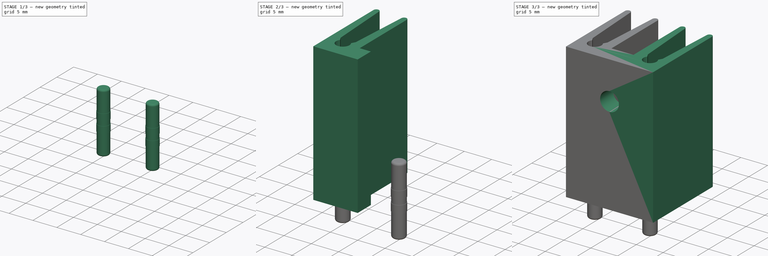
[diagram: build sequence overview — one tinted view per stage of 3, left to right]
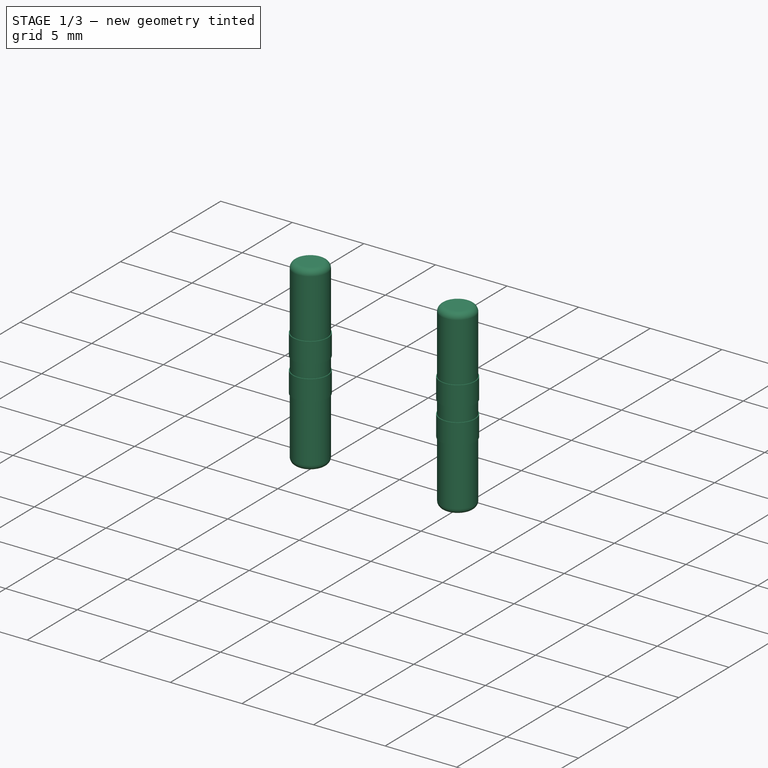
[diagram: stage 1 of 3 — iso view after this stage's code; geometry added in this stage tinted green]
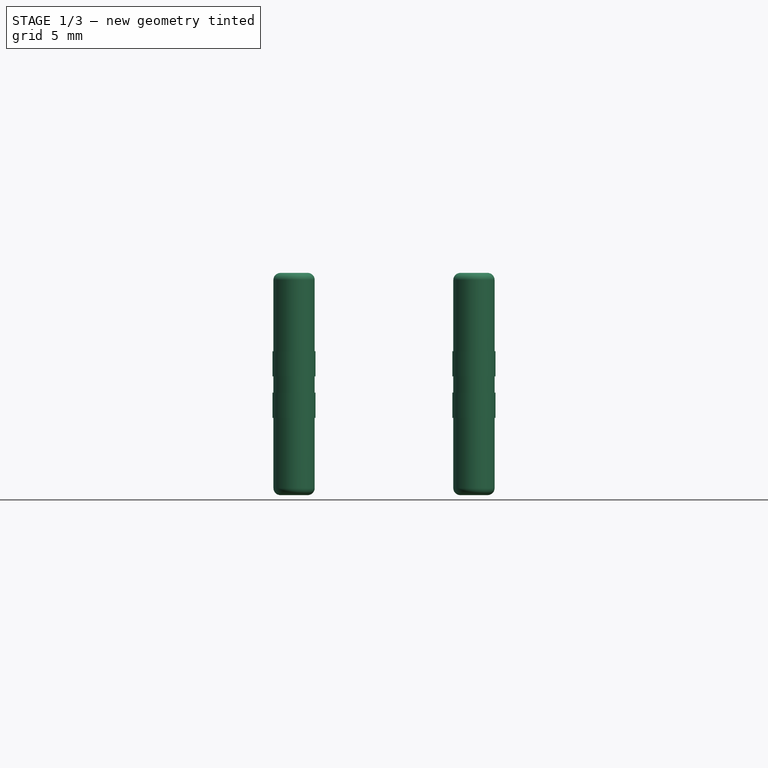
[diagram: stage 1 of 3 — front view after this stage's code; geometry added in this stage tinted green]
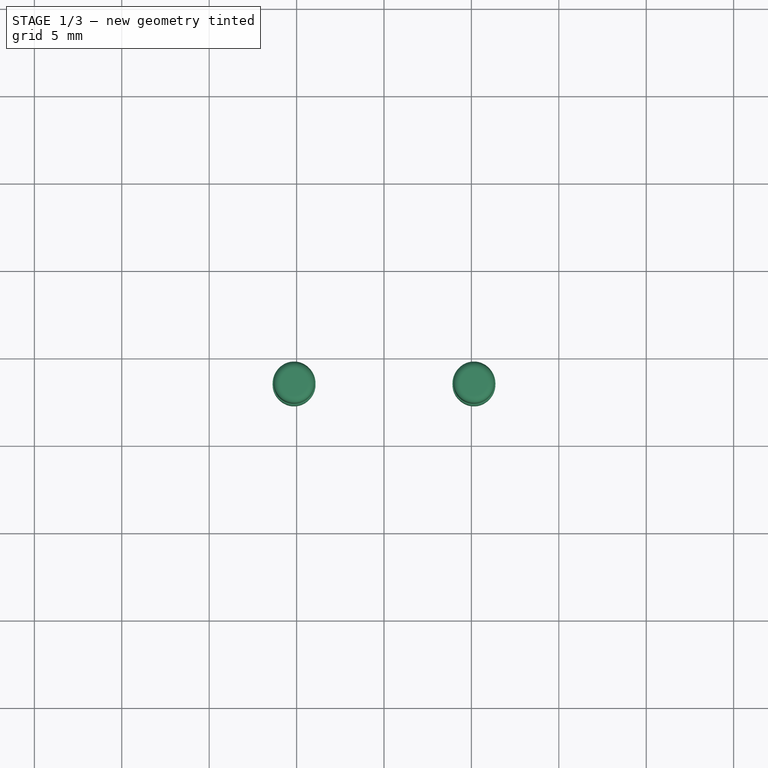
[diagram: stage 1 of 3 — top view after this stage's code; geometry added in this stage tinted green]
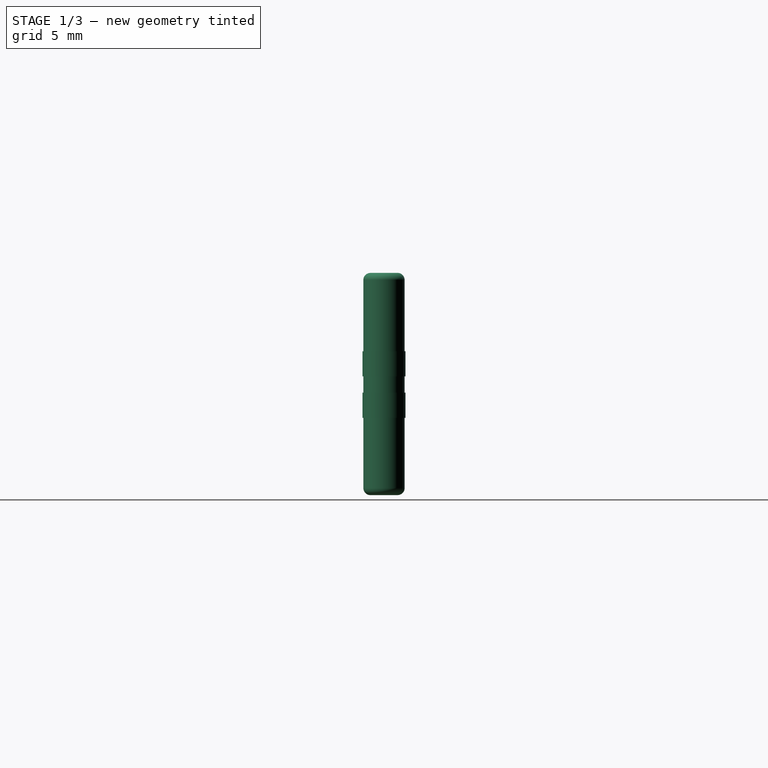
[diagram: stage 1 of 3 — right view after this stage's code; geometry added in this stage tinted green]
FCSTD DOCUMENT  (FreeCAD 1.0R38641 +468 (Git))
Label: 581002-heatsink
License: All rights reserved
LicenseURL: http://en.wikipedia.org/wiki/All_rights_reserved
objects: Sketcher::SketchObject×3, PartDesign::Body×2, PartDesign::Pad×1, PartDesign::Mirrored×1, PartDesign::Pocket×1, PartDesign::Revolution×1, Part::FeaturePython×1
note: 19 computed .brp shape members not serialized (recipe doc carries the construction recipe); baked Part::Feature solids carry a one-line shape summary decoded from their .brp

FEATURE [PartDesign::Body] Body
  AllowCompound = false
  Group = -> [Sketch,Pad,Mirrored,Sketch002,Pocket001]
  Origin = -> Origin
  Tip = -> Pocket001
FEATURE [Sketcher::SketchObject] Sketch003
  ArcFitTolerance = 0
  AttachmentSupport = -> [XZ_Plane001]
  FullyConstrained = true
  MakeInternals = false
  MapMode = 5
  Placement = pos=(0,0,0) rot=(1,0,0;1.5708rad)
  sketch-geometry (21):
    g0: LineSegment StartX=1.18 StartY=4.27 StartZ=0 EndX=1.23 EndY=4.27 EndZ=0
    g1: LineSegment StartX=1.23 StartY=4.27 StartZ=0 EndX=1.23 EndY=2.83 EndZ=0
    g2: LineSegment StartX=1.23 StartY=2.83 StartZ=0 EndX=1.18 EndY=2.83 EndZ=0
    g3: LineSegment StartX=1.18 StartY=2.83 StartZ=0 EndX=1.18 EndY=1.9 EndZ=0
    g4: LineSegment StartX=1.18 StartY=1.9 StartZ=0 EndX=1.23 EndY=1.9 EndZ=0
    g5: LineSegment StartX=1.23 StartY=1.9 StartZ=0 EndX=1.23 EndY=0.46 EndZ=0
    g6: LineSegment StartX=1.23 StartY=0.46 StartZ=0 EndX=1.18 EndY=0.46 EndZ=0
    g7: LineSegment StartX=0 StartY=-3.96 StartZ=0 EndX=0 EndY=8.75 EndZ=0
    g8: LineSegment [constr] StartX=1.18 StartY=4.27 StartZ=0 EndX=1.18 EndY=2.83 EndZ=0
    g9: LineSegment [constr] StartX=1.18 StartY=1.9 StartZ=0 EndX=1.18 EndY=0.46 EndZ=0
    g10: LineSegment [constr] StartX=1.23 StartY=2.83 StartZ=0 EndX=1.23 EndY=1.9 EndZ=0
    g11: ArcOfCircle CenterX=0.78 CenterY=-3.56 CenterZ=0 NormalX=0 NormalY=0 NormalZ=1 AngleXU=0 Radius=0.4 StartAngle=4.71239 EndAngle=6.28319
    g12: ArcOfCircle CenterX=0.78 CenterY=8.35 CenterZ=0 NormalX=0 NormalY=0 NormalZ=1 AngleXU=0 Radius=0.4 StartAngle=6.28319 EndAngle=7.85398
    g13: LineSegment StartX=0 StartY=8.75 StartZ=0 EndX=0.78 EndY=8.75 EndZ=0
    g14: LineSegment [constr] StartX=0.78 StartY=8.75 StartZ=0 EndX=1.18 EndY=8.75 EndZ=0
    g15: LineSegment [constr] StartX=1.18 StartY=8.75 StartZ=0 EndX=1.18 EndY=8.35 EndZ=0
    g16: LineSegment StartX=1.18 StartY=8.35 StartZ=0 EndX=1.18 EndY=4.27 EndZ=0
    g17: LineSegment [constr] StartX=1.18 StartY=-3.96 StartZ=0 EndX=0.78 EndY=-3.96 EndZ=0
    g18: LineSegment StartX=0.78 StartY=-3.96 StartZ=0 EndX=0 EndY=-3.96 EndZ=0
    g19: LineSegment StartX=1.18 StartY=0.46 StartZ=0 EndX=1.18 EndY=-3.56 EndZ=0
    g20: LineSegment [constr] StartX=1.18 StartY=-3.56 StartZ=0 EndX=1.18 EndY=-3.96 EndZ=0
  constraints (58):
    c: PointOnObject(g13,g-2)
    c: Coincident(g14,g15)
    c: Coincident(g16,g0)
    c: Coincident(g0,g1)
    c: Coincident(g1,g2)
    c: Coincident(g2,g3)
    c: Coincident(g3,g4)
    c: Coincident(g4,g5)
    c: Coincident(g5,g6)
    c: Coincident(g6,g19)
    c: Coincident(g20,g17)
    c: PointOnObject(g18,g-2)
    c: Coincident(g18,g7)
    c: Coincident(g7,g13)
    c: Horizontal(g0)
    c: Horizontal(g2)
    c: Horizontal(g4)
    c: Horizontal(g6)
    c: Vertical(g3)
    c: Vertical(g5)
    c: Vertical(g1)
    c: DistanceY(g-1,g13) = 8.75
    c: DistanceY(g18,g-1) = 3.96
    c: DistanceX(g13,g14) = 1.18
    c: Coincident(g8,g16)
    c: Coincident(g8,g2)
    c: Coincident(g9,g3)
    c: Coincident(g9,g6)
    c: Vertical(g9)
    c: Vertical(g8)
    c: Equal(g1,g5)
    c: Coincident(g10,g1)
    c: Coincident(g10,g4)
    c: Vertical(g10)
    c: DistanceY(g1,g1) = 1.44
    c: DistanceY(g10,g10) = 0.93
    c: DistanceX(g13,g0) = 1.23
    c: DistanceY(g18,g6) = 4.42
    c: Horizontal(g13)
    c: Horizontal(g14)
    c: Coincident(g15,g16)
    c: Vertical(g15)
    c: Vertical(g16)
    c: Coincident(g17,g18)
    c: Horizontal(g17)
    c: Horizontal(g18)
    c: Coincident(g19,g20)
    c: Vertical(g19)
    c: Vertical(g20)
    c: Coincident(g11,g17)
    c: Tangent(g11,g18)
    c: Tangent(g11,g19) = 1.5708
    c: Coincident(g12,g15)
    c: Tangent(g13,g12) = 1.5708
    c: Coincident(g14,g12)
    c: Tangent(g12,g16)
    c: Equal(g12,g11)
    c: Radius(g12) = 0.4
FEATURE [PartDesign::Revolution] Revolution
  Angle = 360
  Angle2 = 60
  Axis = (0,2e-16,1)
  Base = (0,0,0)
  Placement = pos=(0,0,0) rot=(1,0,0;1.5708rad)
  Profile = -> Sketch003
  ReferenceAxis = -> Sketch003 [V_Axis]
  Reversed = true
  Suppressed = false
  Type = 0
FEATURE [PartDesign::Body] Body001
  AllowCompound = false
  Group = -> [Sketch003,Revolution]
  Origin = -> Origin001
  Tip = -> Revolution
FEATURE [Part::FeaturePython] Array  label="Pin"  # Draft array (typed FeaturePython)
  AlwaysSyncPlacement = false
  Angle = 360
  ArrayType = 0
  Axis = (0,0,1)
  Base = -> Body001
  Center = (0,0,0)
  Count = 2
  ExpandArray = false
  Fuse = false
  IntervalAxis = (0,0,0)
  IntervalX = (10.29,0,0)
  IntervalY = (0,100,0)
  IntervalZ = (0,0,100)
  NumberCircles = 3
  NumberPolar = 5
  NumberX = 2
  NumberY = 1
  NumberZ = 1
  Placement = pos=(-5.145,3.45,0) rot=(0,0,1;0rad)
  PlacementList = 2 placements: [(0,0,0),(10.29,0,0)]
  RadialDistance = 50
  ScaleList = (2) [(1,1,1),(1,1,1)]
  Symmetry = 1
  TangentialDistance = 25
  expr: .IntervalX.x = <<Sketch>>.Constraints.PinSpc_2 * 2
  expr: .Placement.Base.x = -<<Sketch>>.Constraints.PinSpc_2
  expr: .Placement.Base.y = <<Sketch>>.Constraints.BaseThick
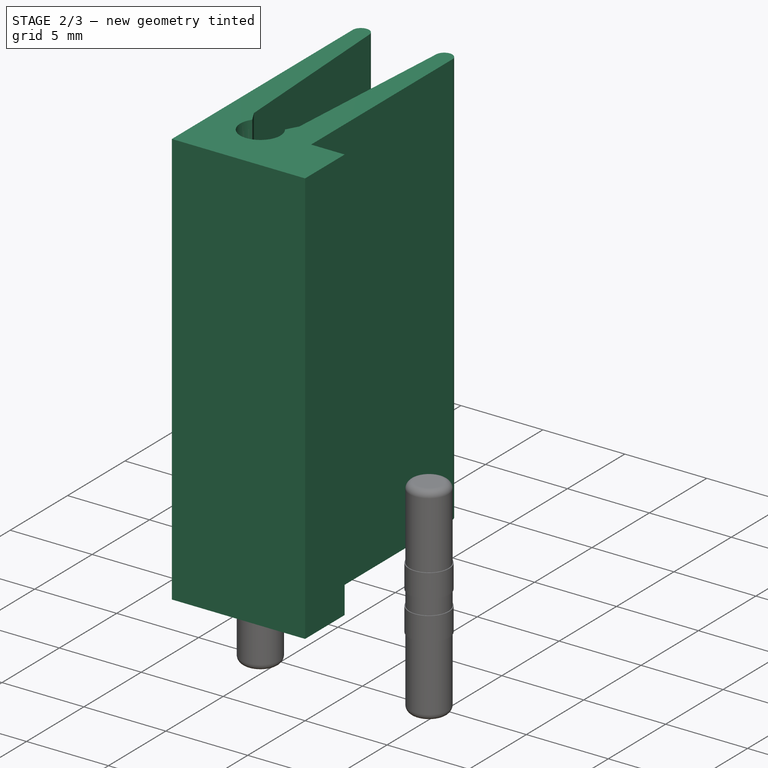
[diagram: stage 2 of 3 — iso view after this stage's code; geometry added in this stage tinted green]
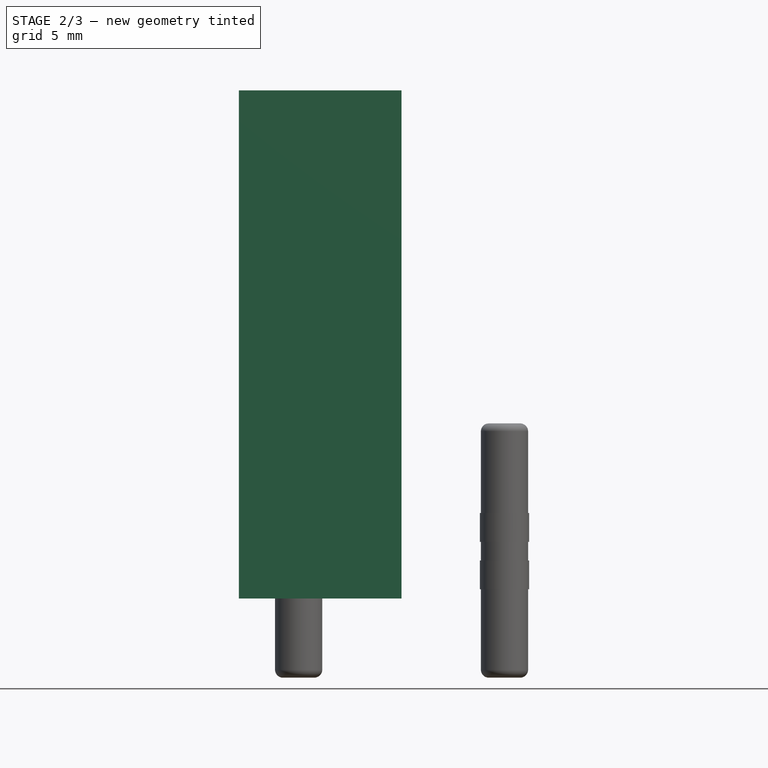
[diagram: stage 2 of 3 — front view after this stage's code; geometry added in this stage tinted green]
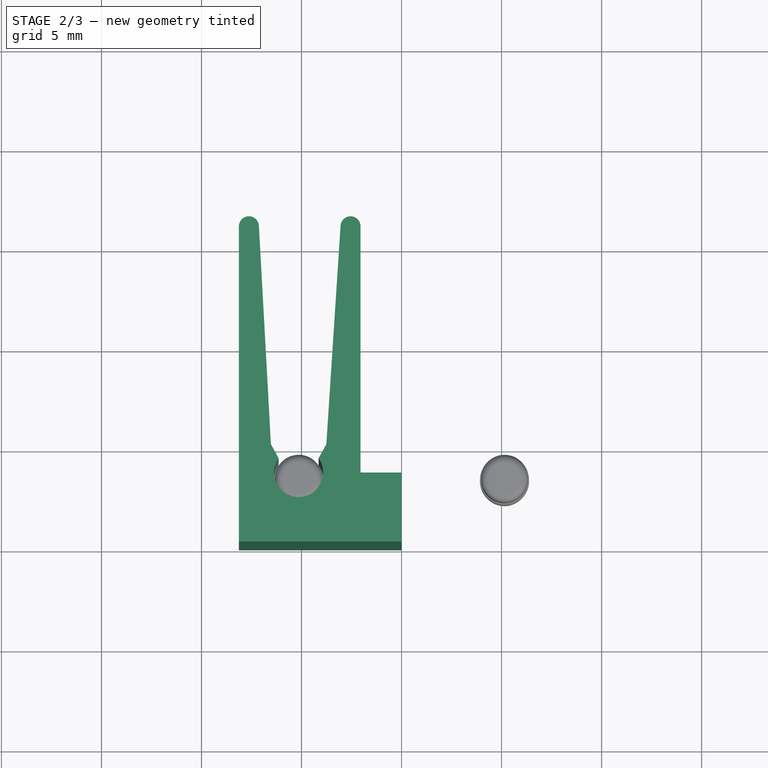
[diagram: stage 2 of 3 — top view after this stage's code; geometry added in this stage tinted green]
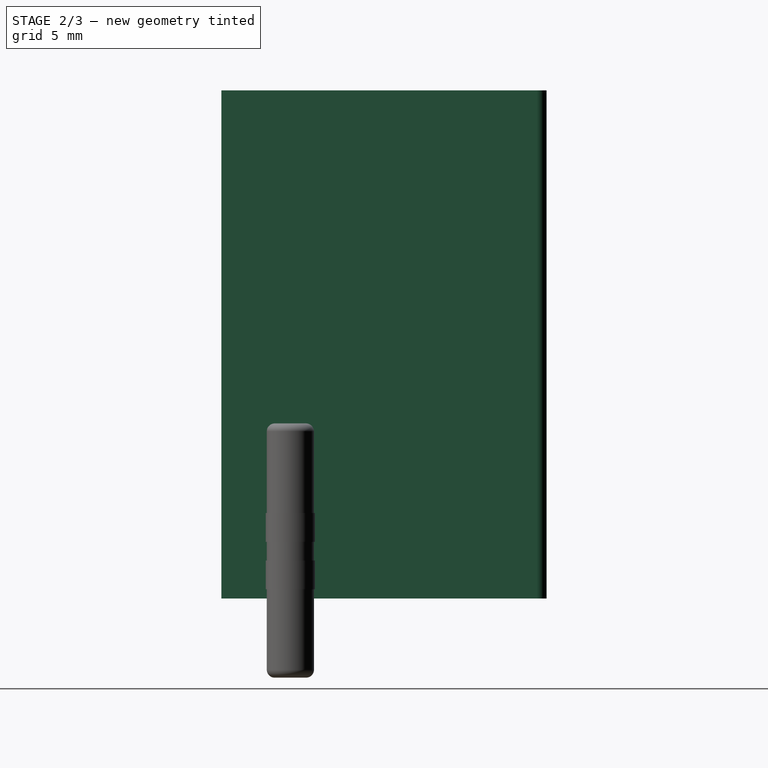
[diagram: stage 2 of 3 — right view after this stage's code; geometry added in this stage tinted green]
FEATURE [Sketcher::SketchObject] Sketch
  ArcFitTolerance = 0
  AttachmentSupport = -> [XY_Plane]
  FullyConstrained = true
  MakeInternals = false
  MapMode = 5
  sketch-geometry (21):
    g0: LineSegment StartX=-8.13 StartY=0 StartZ=0 EndX=0 EndY=0 EndZ=0
    g1: LineSegment StartX=-8.13 StartY=0 StartZ=0 EndX=-8.13 EndY=15.76 EndZ=0
    g2: LineSegment StartX=-2.05 StartY=15.76 StartZ=0 EndX=-2.05 EndY=3.45 EndZ=0
    g3: LineSegment StartX=-2.05 StartY=3.45 StartZ=0 EndX=0 EndY=3.45 EndZ=0
    g4: LineSegment StartX=-3.04894 StartY=15.7925 StartZ=0 EndX=-3.76 EndY=4.86617 EndZ=0
    g5: LineSegment StartX=-7.13075 StartY=15.7875 StartZ=0 EndX=-6.53 EndY=4.86617 EndZ=0
    g6: ArcOfCircle CenterX=-7.63 CenterY=15.76 CenterZ=0 NormalX=0 NormalY=0 NormalZ=1 AngleXU=0 Radius=0.5 StartAngle=0.0549524 EndAngle=3.14159
    g7: LineSegment StartX=-3.76 StartY=4.86617 StartZ=0 EndX=-4.145 EndY=4.16617 EndZ=0
    g8: LineSegment StartX=-6.53 StartY=4.86617 StartZ=0 EndX=-6.145 EndY=4.16617 EndZ=0
    g9: LineSegment [constr] StartX=-6.145 StartY=4.16617 StartZ=0 EndX=-4.145 EndY=4.16617 EndZ=0
    g10: LineSegment [constr] StartX=-8.13 StartY=16.26 StartZ=0 EndX=0 EndY=16.26 EndZ=0
    g11: LineSegment StartX=0 StartY=0 StartZ=0 EndX=0 EndY=3.45 EndZ=0
    g12: LineSegment [constr] StartX=0 StartY=16.26 StartZ=0 EndX=0 EndY=3.45 EndZ=0
    g13: ArcOfCircle CenterX=-2.55 CenterY=15.76 CenterZ=0 NormalX=0 NormalY=0 NormalZ=1 AngleXU=0 Radius=0.5 StartAngle=6.28319 EndAngle=9.35979
    g14: LineSegment [constr] StartX=-2.05 StartY=3.45 StartZ=0 EndX=-8.13 EndY=3.45 EndZ=0
    g15: ArcOfCircle CenterX=-5.145 CenterY=3.45 CenterZ=0 NormalX=0 NormalY=0 NormalZ=1 AngleXU=0 Radius=1.23 StartAngle=2.5201 EndAngle=6.90468
    g16: LineSegment [constr] StartX=-6.53 StartY=4.86617 StartZ=0 EndX=-8.13 EndY=4.86617 EndZ=0
    g17: LineSegment [constr] StartX=-3.76 StartY=4.86617 StartZ=0 EndX=-2.05 EndY=4.86617 EndZ=0
    g18: LineSegment [constr] StartX=-6.53 StartY=4.86617 StartZ=0 EndX=-5.145 EndY=4.86617 EndZ=0
    g19: LineSegment [constr] StartX=-5.145 StartY=4.86617 StartZ=0 EndX=-3.76 EndY=4.86617 EndZ=0
    g20: LineSegment [constr] StartX=-5.145 StartY=4.86617 StartZ=0 EndX=-5.145 EndY=3.45 EndZ=0
  constraints (64):
    c: Horizontal(g0)
    c: Coincident(g1,g0)
    c: Vertical(g1)
    c: Vertical(g2)
    c: Coincident(g3,g2)
    c: Horizontal(g3)
    c: Coincident(g6,g5)
    c: Coincident(g6,g1)
    c: Coincident(g7,g4)
    c: Tangent(g6,g5)
    c: Tangent(g6,g1)
    c: Horizontal(g9)
    c: Coincident(g9,g8)
    c: Coincident(g7,g9)
    c: Coincident(g8,g5)
    c: Horizontal(g10)
    c: Tangent(g10,g6)
    c: Coincident(g11,g0)
    c: Coincident(g11,g3)
    c: Vertical(g11)
    c: Coincident(g0,g-1)
    c: DistanceX(g0) = 8.13
    c: Equal(g0,g10)
    c: Coincident(g12,g10)
    c: Coincident(g12,g3)
    c: Vertical(g12)
    c: DistanceY(g11) = 3.45  'BaseThick'
    c: Coincident(g13,g4)
    c: Tangent(g13,g4)
    c: Tangent(g13,g10)
    c: Radius(g13) = 0.5
    c: DistanceX(g3) = 2.05
    c: Coincident(g18,g5)
    c: Coincident(g19,g4)
    c: Equal(g8,g7)
    c: DistanceX(g9) = 2
    c: Coincident(g2,g13)
    c: Tangent(g13,g2)
    c: Equal(g6,g13)
    c: DistanceY(g0,g10) = 16.26
    c: Coincident(g14,g2)
    c: PointOnObject(g14,g1)
    c: Horizontal(g14)
    c: PointOnObject(g15,g14)
    c: DistanceX(g15,g0) = 5.145  'PinSpc_2'
    c: Coincident(g15,g7)
    c: Coincident(g15,g8)
    c: Coincident(g16,g5)
    c: PointOnObject(g16,g1)
    c: Horizontal(g16)
    c: Coincident(g17,g4)
    c: PointOnObject(g17,g2)
    c: Horizontal(g17)
    c: Coincident(g18,g19)
    c: Horizontal(g18)
    c: Horizontal(g19)
    c: Equal(g19,g18)
    c: Coincident(g20,g18)
    c: Coincident(g20,g15)
    c: Radius(g15) = 1.23
    c: DistanceX(g16,g16) = 1.6
    c: DistanceX(g17,g17) = 1.71
    c: DistanceY(g8,g16) = 0.7
    c: DistanceY(g0,g8) = 4.16617
FEATURE [PartDesign::Pad] Pad
  Direction = (0,0,1)
  Length = 25.4
  Length2 = 10
  Profile = -> Sketch
  ReferenceAxis = -> Sketch [N_Axis]
  Suppressed = false
  Type = 0
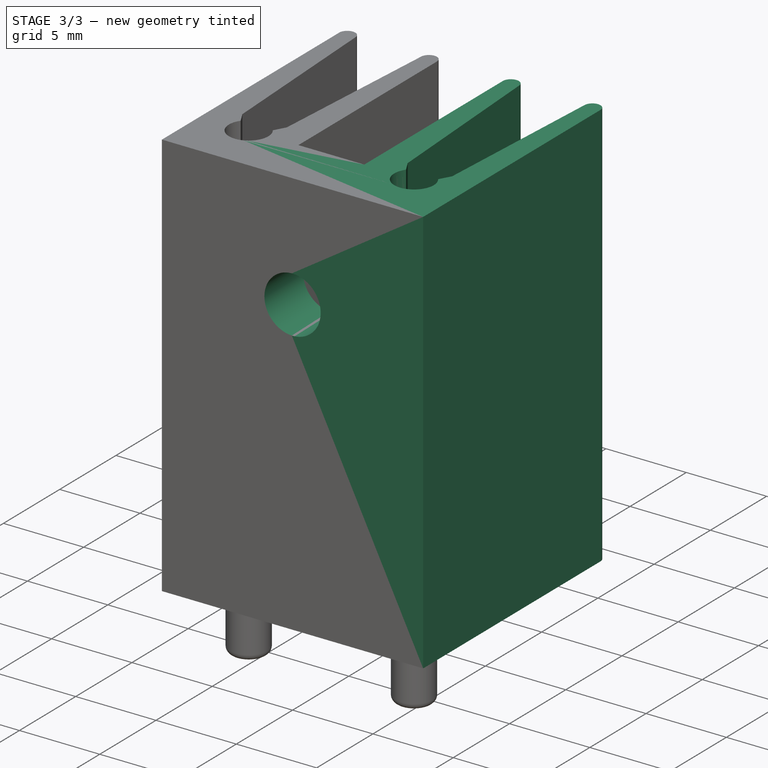
[diagram: stage 3 of 3 — iso view after this stage's code; geometry added in this stage tinted green]
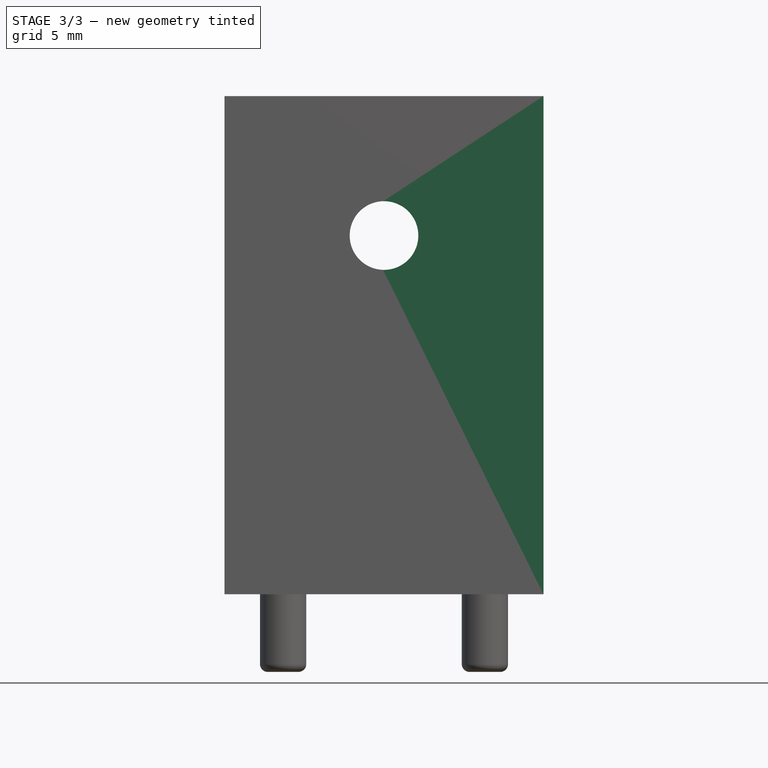
[diagram: stage 3 of 3 — front view after this stage's code; geometry added in this stage tinted green]
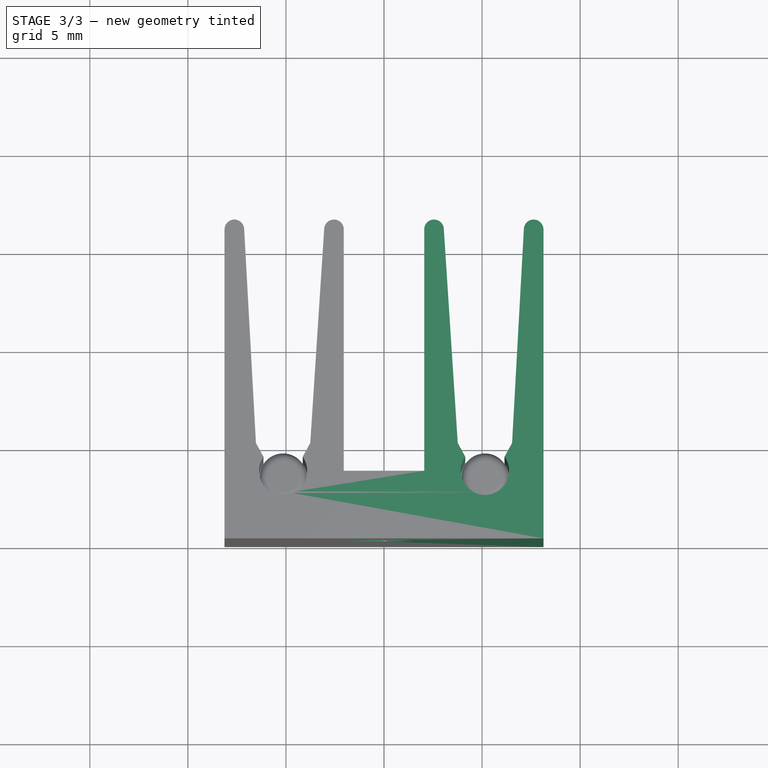
[diagram: stage 3 of 3 — top view after this stage's code; geometry added in this stage tinted green]
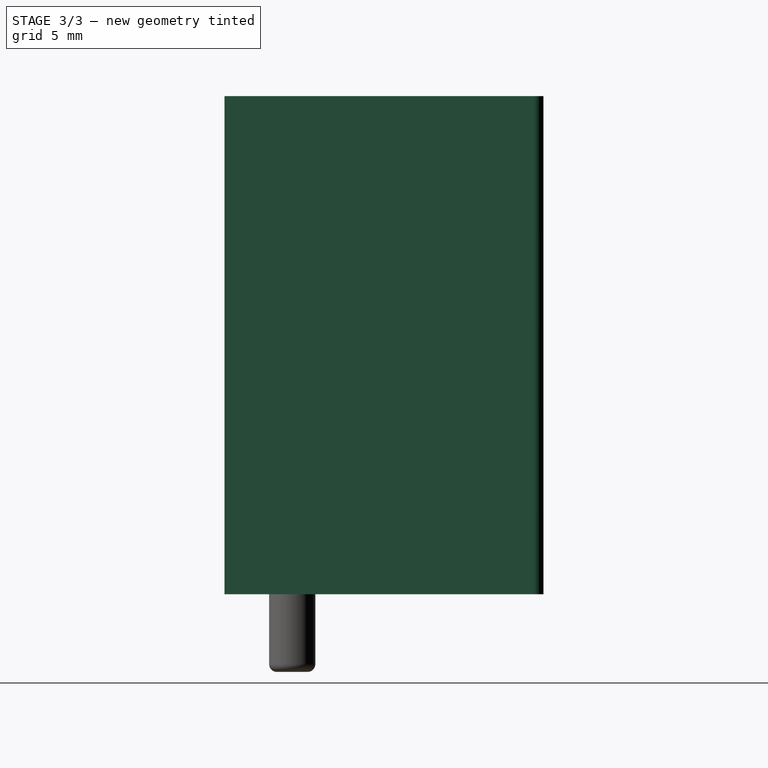
[diagram: stage 3 of 3 — right view after this stage's code; geometry added in this stage tinted green]
FEATURE [PartDesign::Mirrored] Mirrored
  BaseFeature = -> Pad
  MirrorPlane = -> Sketch [V_Axis]
  Originals = -> [Pad]
  Refine = true
  Suppressed = false
  TransformMode = 0
FEATURE [Sketcher::SketchObject] Sketch002
  ArcFitTolerance = 0
  AttachmentSupport = -> [XZ_Plane]
  FullyConstrained = true
  MakeInternals = false
  MapMode = 5
  Placement = pos=(0,0,0) rot=(1,0,0;1.5708rad)
  sketch-geometry (1):
    g0: Circle CenterX=0 CenterY=18.29 CenterZ=0 NormalX=0 NormalY=0 NormalZ=1 AngleXU=0 Radius=1.75
  constraints (3):
    c: Radius(g0) = 1.75
    c: DistanceY(g-1,g0) = 18.29
    c: PointOnObject(g0,g-2)
FEATURE [PartDesign::Pocket] Pocket001
  BaseFeature = -> Mirrored
  Direction = (0,1,-2e-16)
  Length = 5
  Length2 = 5
  Profile = -> Sketch002
  ReferenceAxis = -> Sketch002 [N_Axis]
  Suppressed = false
  Type = 1
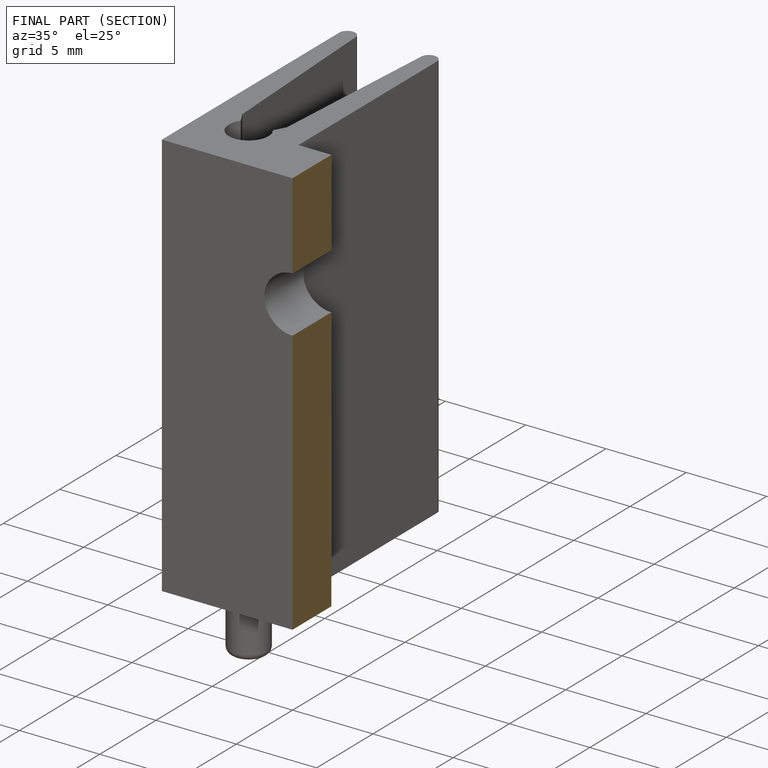
[diagram: finished part — half-section view (interior)]
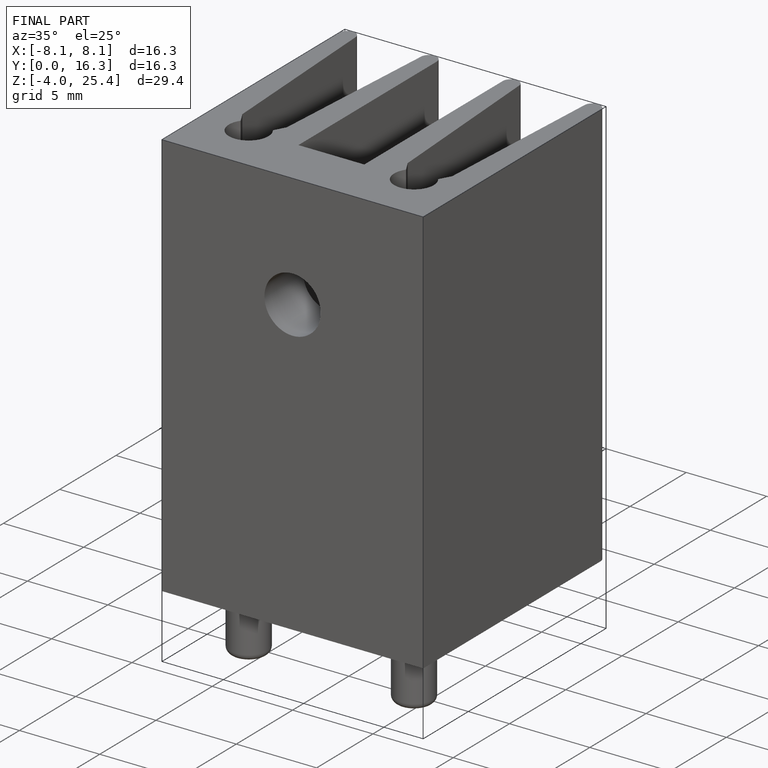
[diagram: finished part — iso view with bounding-box wireframe]
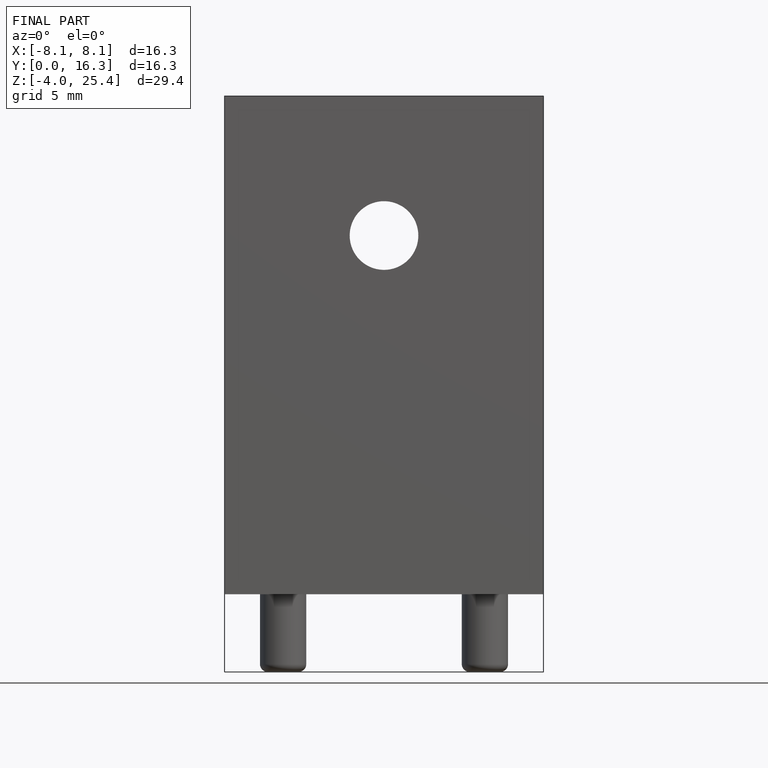
[diagram: finished part — front view with bounding-box wireframe]
